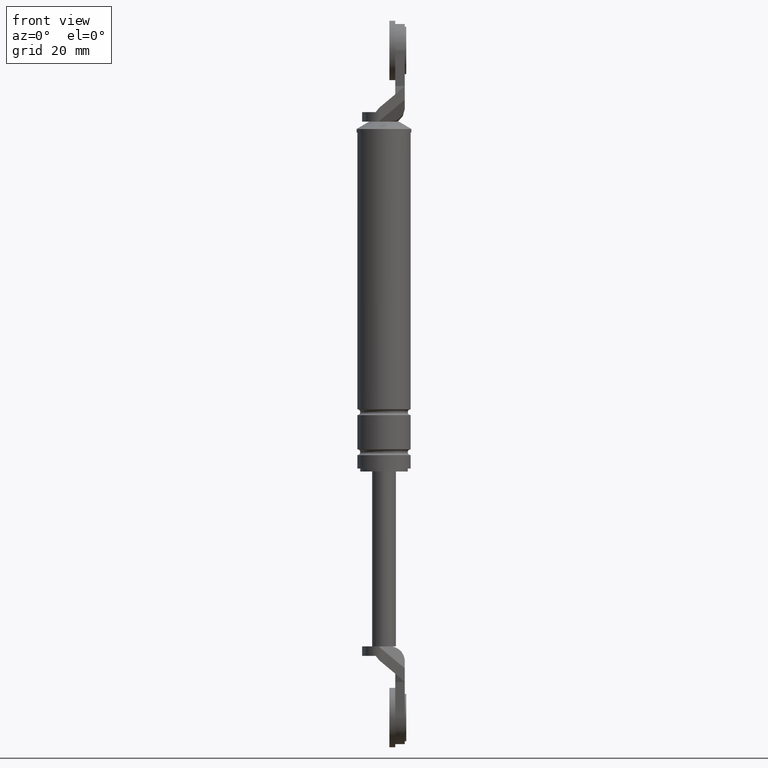
[diagram: clean part render]
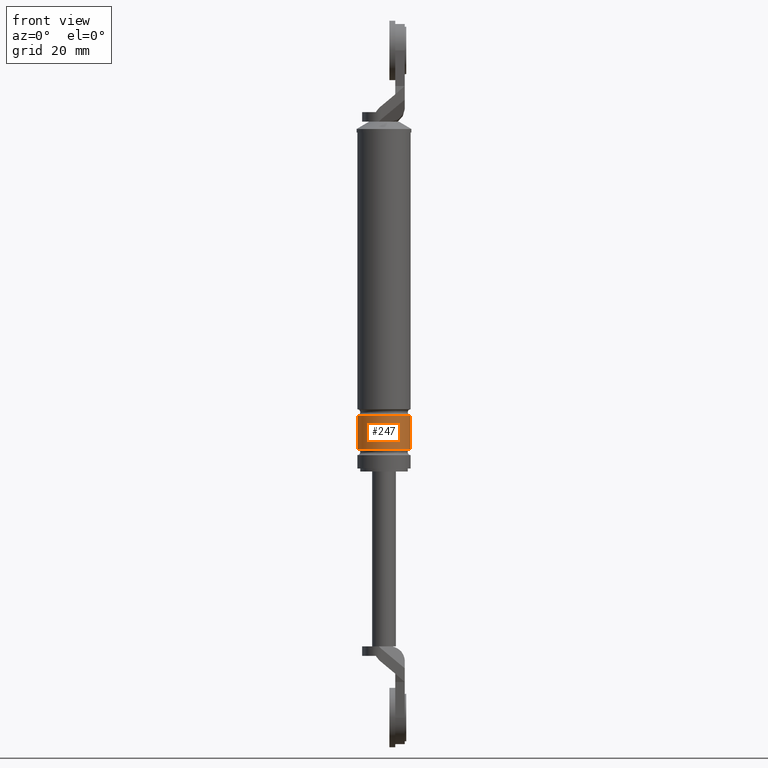
[diagram: same view with one face highlighted and labeled with its STEP entity id]
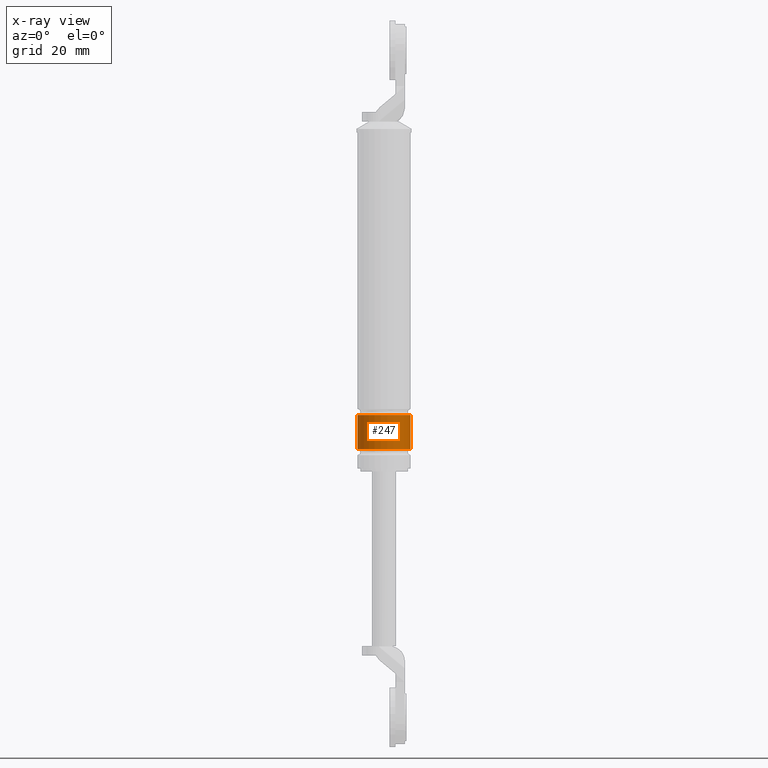
[diagram: x-ray of the same camera — body ghosted, the highlighted face saturated]
A machine part, front view. The second image highlights one B-rep face of the part: STEP entity #247.
The next image is the same camera in x-ray: the body ghosted, the highlighted face saturated — about 0% of this face is hidden behind the body in this view.
In plain terms, the highlighted cylindrical surface (edge-blend (fillet) strip) has radius 9 mm, axis along (0, 0, 1).
Its self-contained STEP definition (entity closure, byte-faithful):
#247=ADVANCED_FACE('',(#725),#724,.T.);
#724=CYLINDRICAL_SURFACE('',#1464,9.00000000000E+000);
#725=FACE_OUTER_BOUND('',#1465,.T.);
#1461=CARTESIAN_POINT('',(0.00000000000E+000,3.58204186421E-014,0.00000000000E+000));
#1462=DIRECTION('',(-0.00000000000E+000,-0.00000000000E+000,1.00000000000E+000));
#1463=DIRECTION('',(-1.00000000000E+000,1.22464679915E-016,0.00000000000E+000));
#1464=AXIS2_PLACEMENT_3D('',#1461,#1462,#1463);
#1465=EDGE_LOOP('',(#1966,#1967,#1968,#1969));
#1966=ORIENTED_EDGE('',*,*,#2264,.T.);
#1967=ORIENTED_EDGE('',*,*,#2269,.F.);
#1968=ORIENTED_EDGE('',*,*,#2270,.F.);
#1969=ORIENTED_EDGE('',*,*,#2271,.T.);
#2264=EDGE_CURVE('',#3046,#3053,#3066,.T.);
#2269=EDGE_CURVE('',#3098,#3053,#3099,.T.);
#2270=EDGE_CURVE('',#3105,#3098,#3106,.T.);
#2271=EDGE_CURVE('',#3105,#3046,#3112,.T.);
#3046=VERTEX_POINT('',#4103);
#3053=VERTEX_POINT('',#4109);
#3066=CIRCLE('',#4122,9.00000000000E+000);
#3098=VERTEX_POINT('',#4137);
#3099=(BOUNDED_CURVE() B_SPLINE_CURVE(1,(#4138,#4139),.UNSPECIFIED.,.F.,.F.) B_SPLINE_CURVE_WITH_KNOTS((2,2),(8.33333343261E-002,9.16666667006E-001),.UNSPECIFIED.) CURVE() GEOMETRIC_REPRESENTATION_ITEM() RATIONAL_B_SPLINE_CURVE((1.00000000000E+000,1.00000000000E+000)) REPRESENTATION_ITEM('') );
#3105=VERTEX_POINT('',#4140);
#3106=CIRCLE('',#4144,9.00000000000E+000);
#3112=(BOUNDED_CURVE() B_SPLINE_CURVE(1,(#4145,#4146),.UNSPECIFIED.,.F.,.F.) B_SPLINE_CURVE_WITH_KNOTS((2,2),(8.33333333333E-002,9.16666666667E-001),.UNSPECIFIED.) CURVE() GEOMETRIC_REPRESENTATION_ITEM() RATIONAL_B_SPLINE_CURVE((7.50000000000E-001,7.50000000000E-001)) REPRESENTATION_ITEM('') );
#4103=CARTESIAN_POINT('',(9.00000000000E+000,3.61192557345E-014,-1.00000150000E+001));
#4109=CARTESIAN_POINT('',(-9.00000000000E+000,3.58204186421E-014,-1.00000150000E+001));
#4119=CARTESIAN_POINT('',(0.00000000000E+000,3.58204186421E-014,-1.00000150000E+001));
#4120=DIRECTION('',(-0.00000000000E+000,0.00000000000E+000,-1.00000000000E+000));
#4121=DIRECTION('',(-1.00000000000E+000,-1.22460635382E-016,0.00000000000E+000));
#4122=AXIS2_PLACEMENT_3D('',#4119,#4120,#4121);
#4137=CARTESIAN_POINT('',(-9.00000000000E+000,3.58204186421E-014,-2.15000150000E+001));
#4138=CARTESIAN_POINT('',(-9.00000000000E+000,3.69226007613E-014,-2.15000149863E+001));
#4139=CARTESIAN_POINT('',(-9.00000000000E+000,3.69226007613E-014,-1.00000149953E+001));
#4140=CARTESIAN_POINT('',(9.00000000000E+000,3.61192557345E-014,-2.15000150000E+001));
#4141=CARTESIAN_POINT('',(0.00000000000E+000,3.58204186421E-014,-2.15000150000E+001));
#4142=DIRECTION('',(-0.00000000000E+000,0.00000000000E+000,-1.00000000000E+000));
#4143=DIRECTION('',(-1.00000000000E+000,-1.22460635382E-016,0.00000000000E+000));
#4144=AXIS2_PLACEMENT_3D('',#4141,#4142,#4143);
#4145=CARTESIAN_POINT('',(9.00000000000E+000,3.46389583683E-014,-2.15000150000E+001));
#4146=CARTESIAN_POINT('',(9.00000000000E+000,3.46389583683E-014,-1.00000150000E+001));